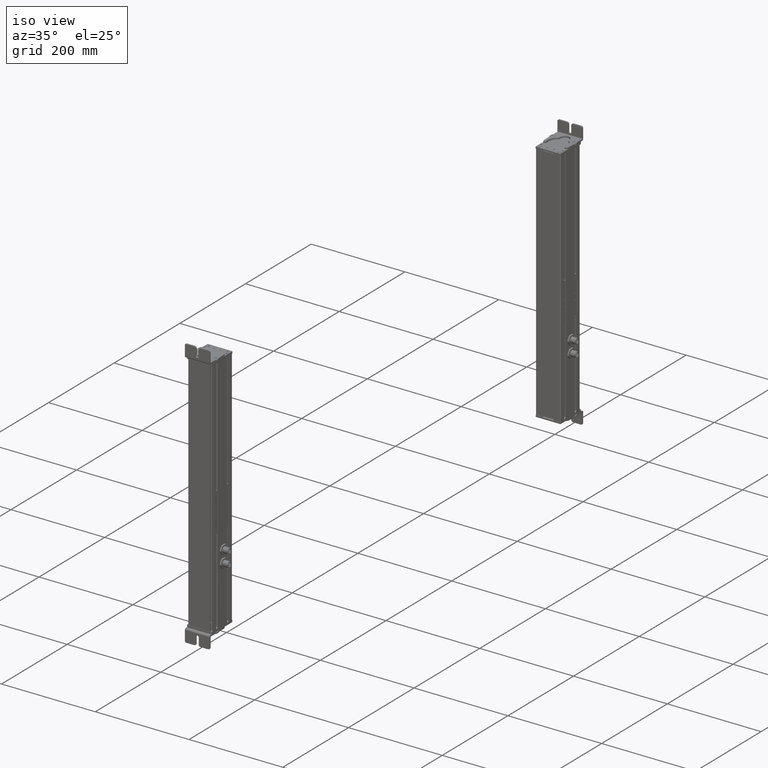
[diagram: clean part render]
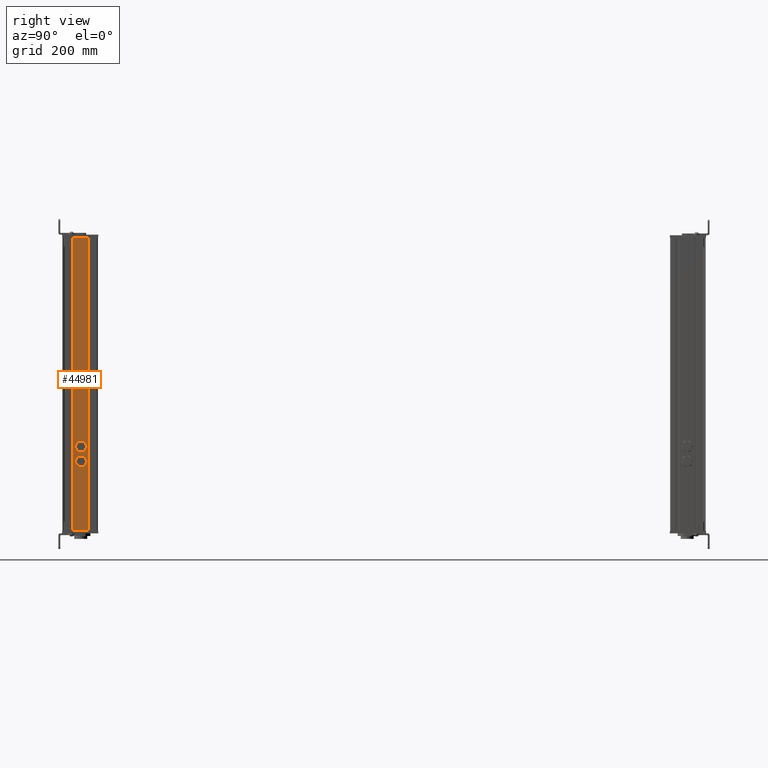
[diagram: tour spotlight — one face highlighted and labeled with its STEP entity id]
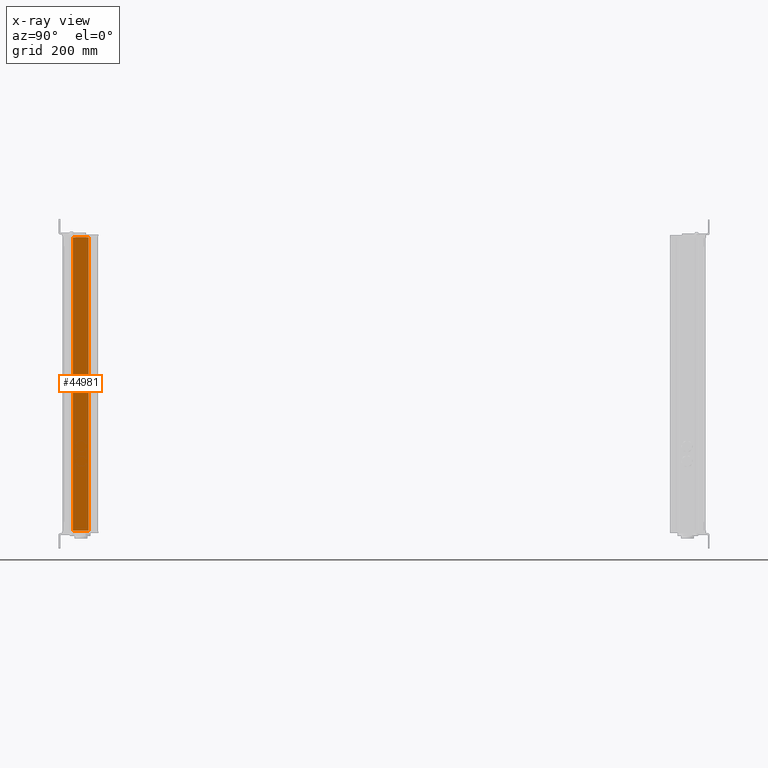
[diagram: x-ray of the same camera — body ghosted, this tour face saturated]
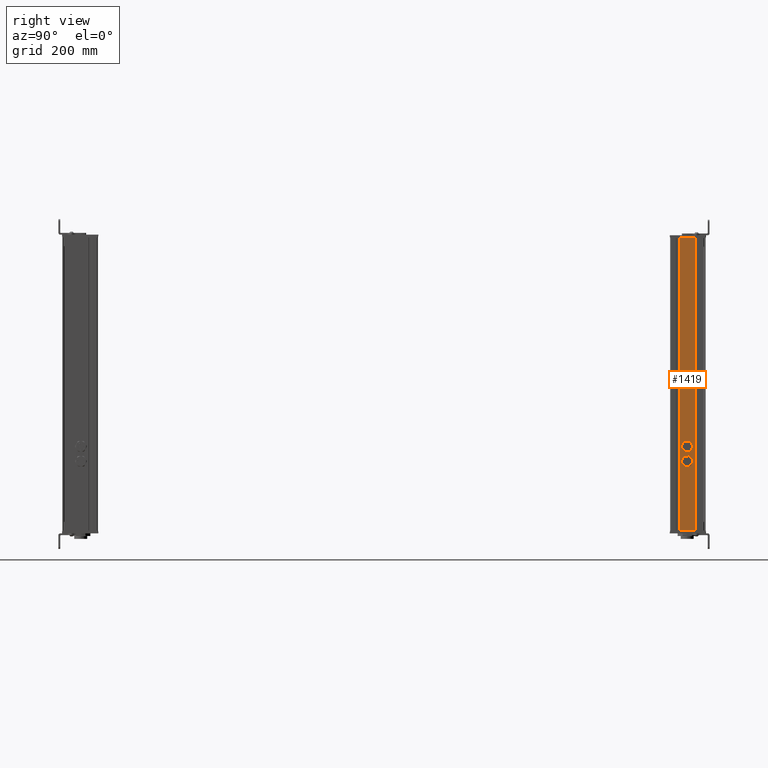
[diagram: tour spotlight — one face highlighted and labeled with its STEP entity id]
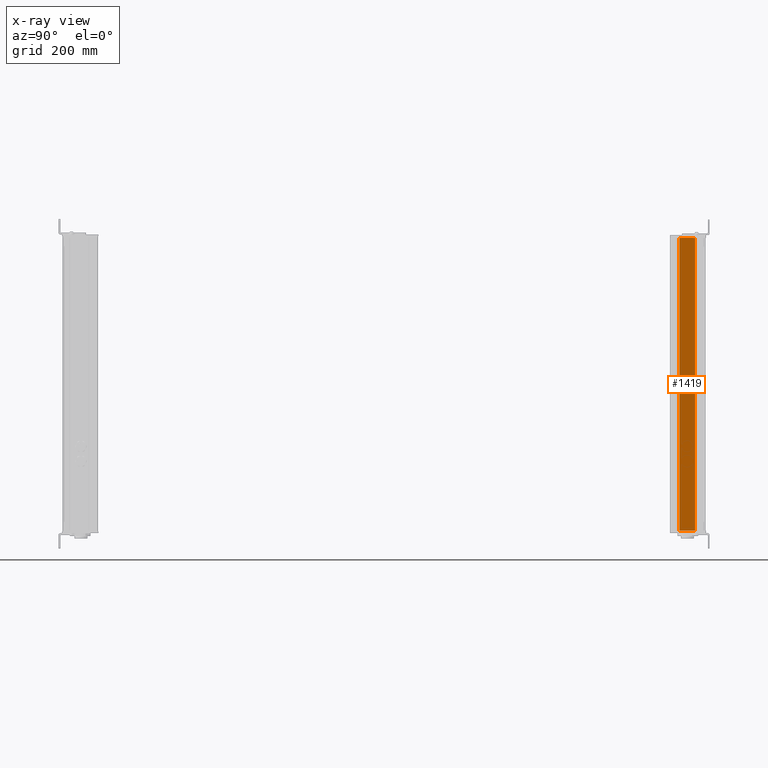
[diagram: x-ray of the same camera — body ghosted, this tour face saturated]
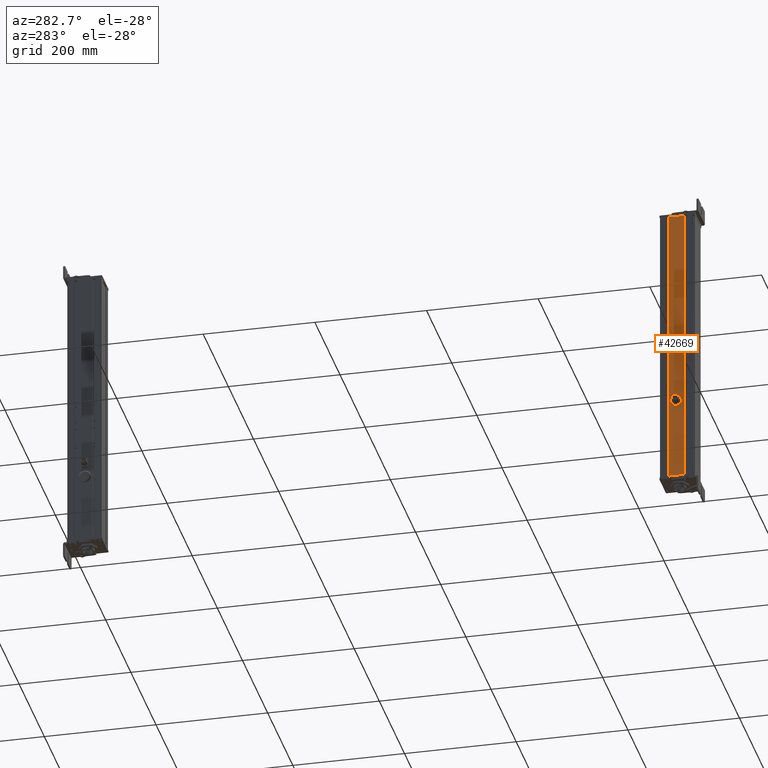
[diagram: tour spotlight — one face highlighted and labeled with its STEP entity id]
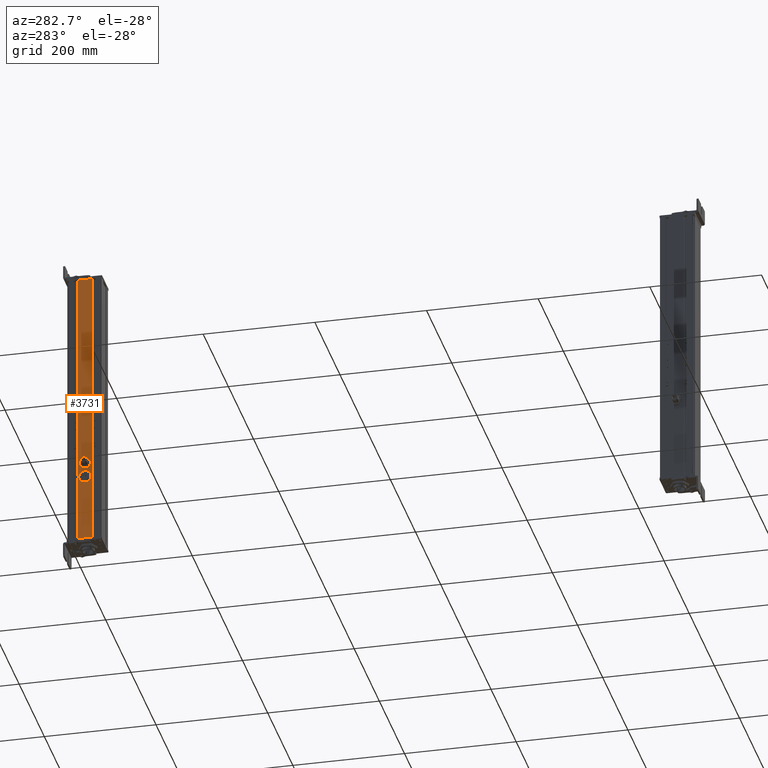
[diagram: tour spotlight — one face highlighted and labeled with its STEP entity id]
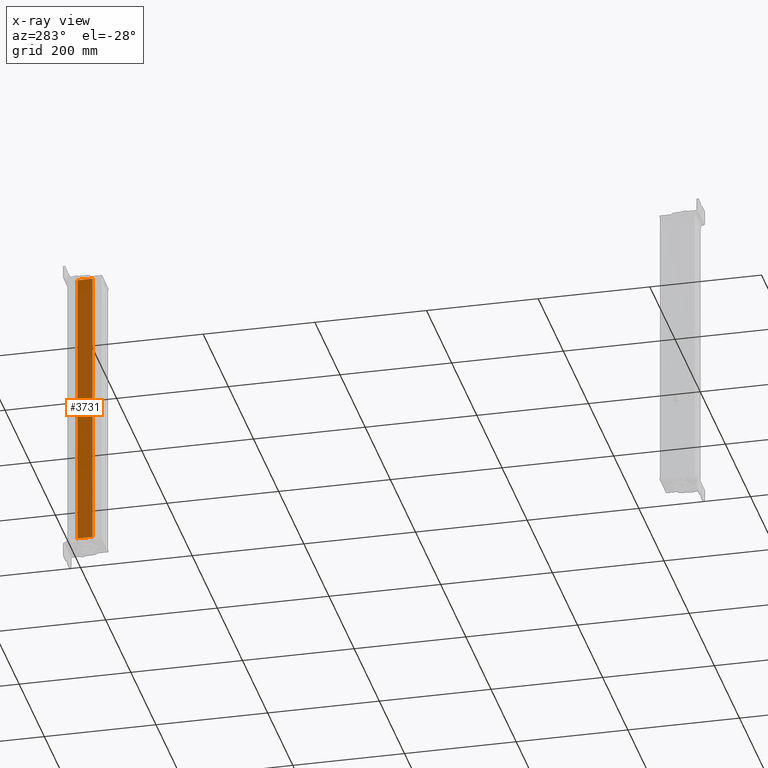
[diagram: x-ray of the same camera — body ghosted, this tour face saturated]
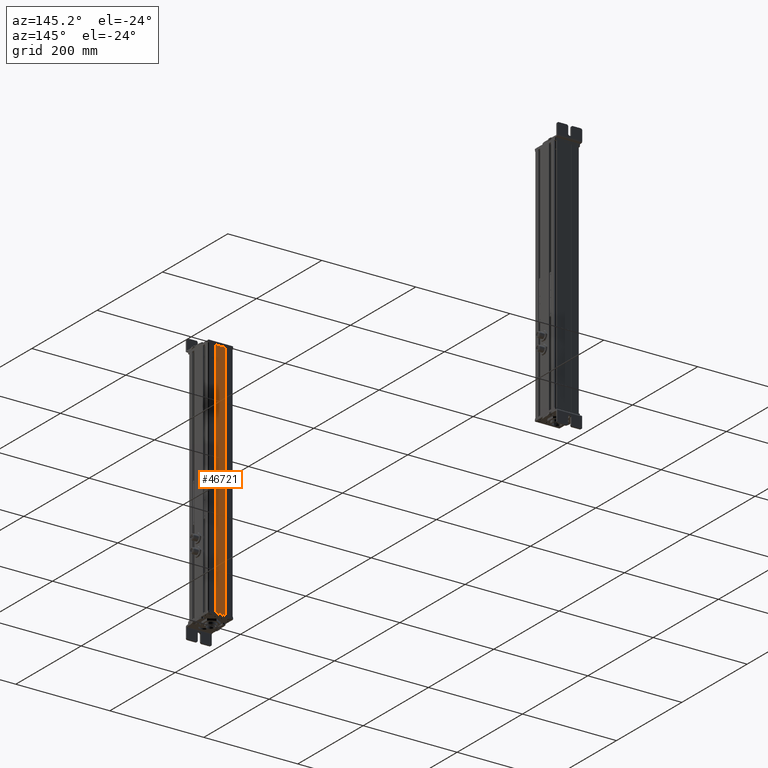
[diagram: tour spotlight — one face highlighted and labeled with its STEP entity id]
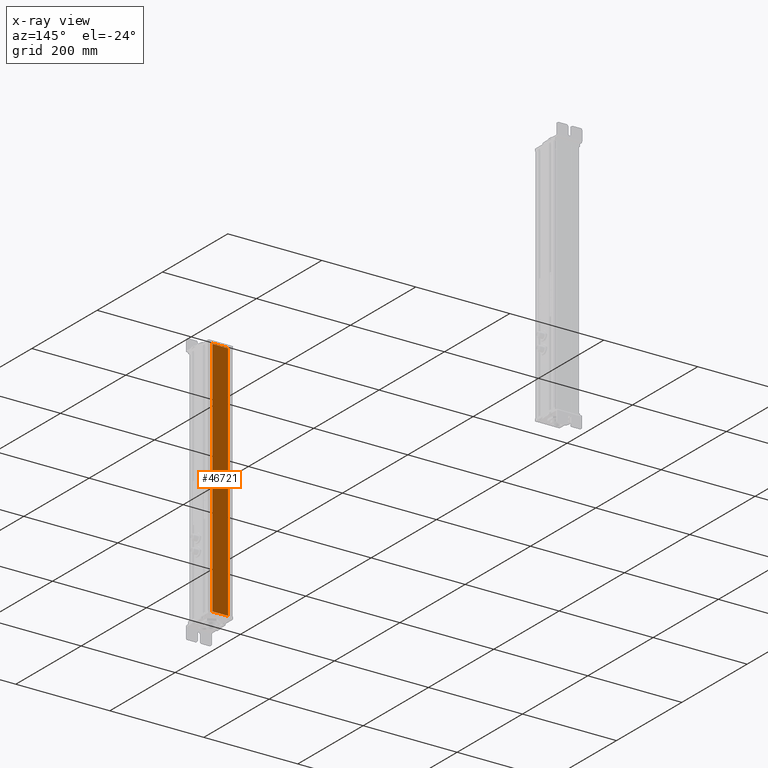
[diagram: x-ray of the same camera — body ghosted, this tour face saturated]
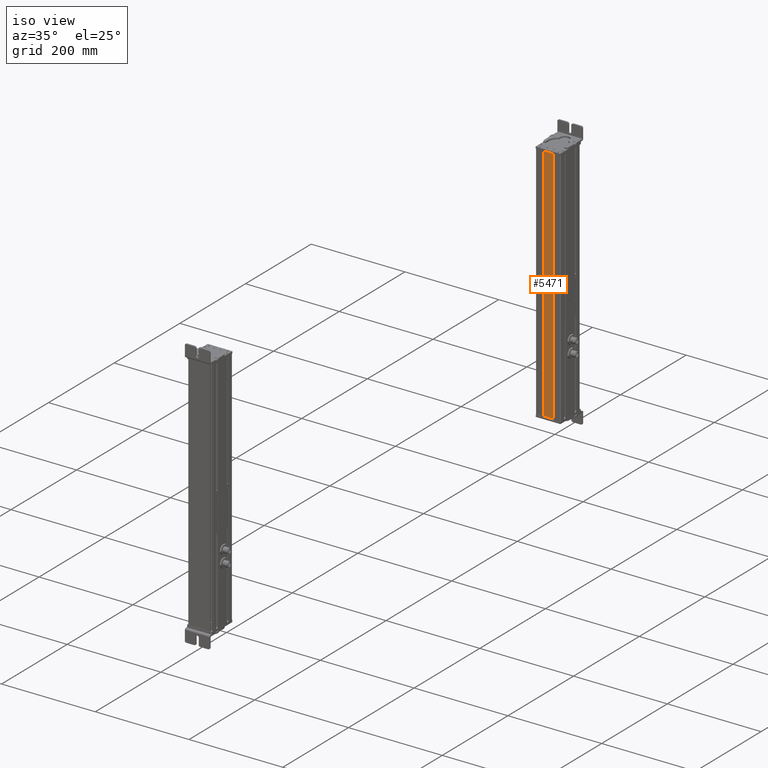
[diagram: tour spotlight — one face highlighted and labeled with its STEP entity id]
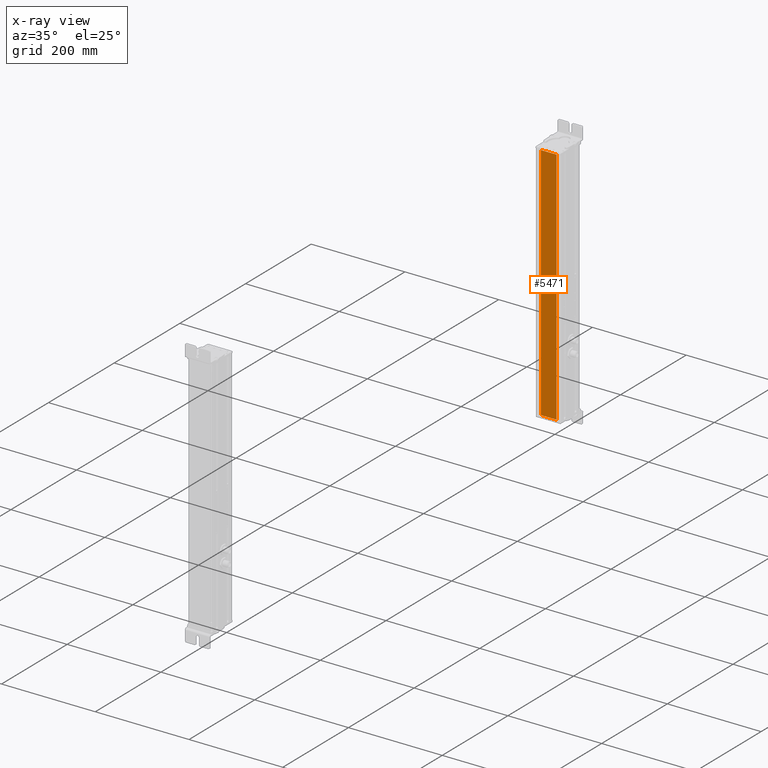
[diagram: x-ray of the same camera — body ghosted, this tour face saturated]
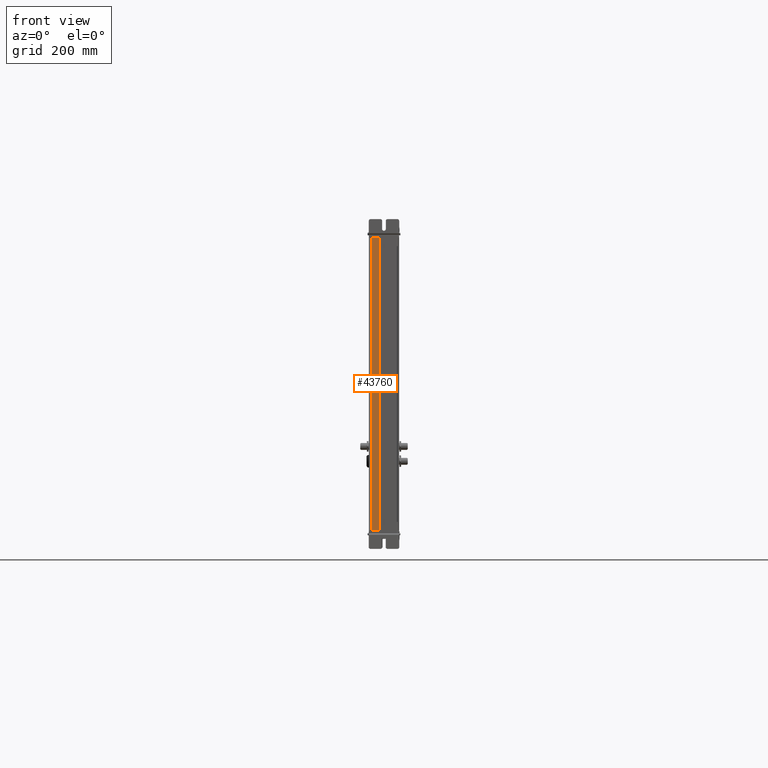
[diagram: tour spotlight — one face highlighted and labeled with its STEP entity id]
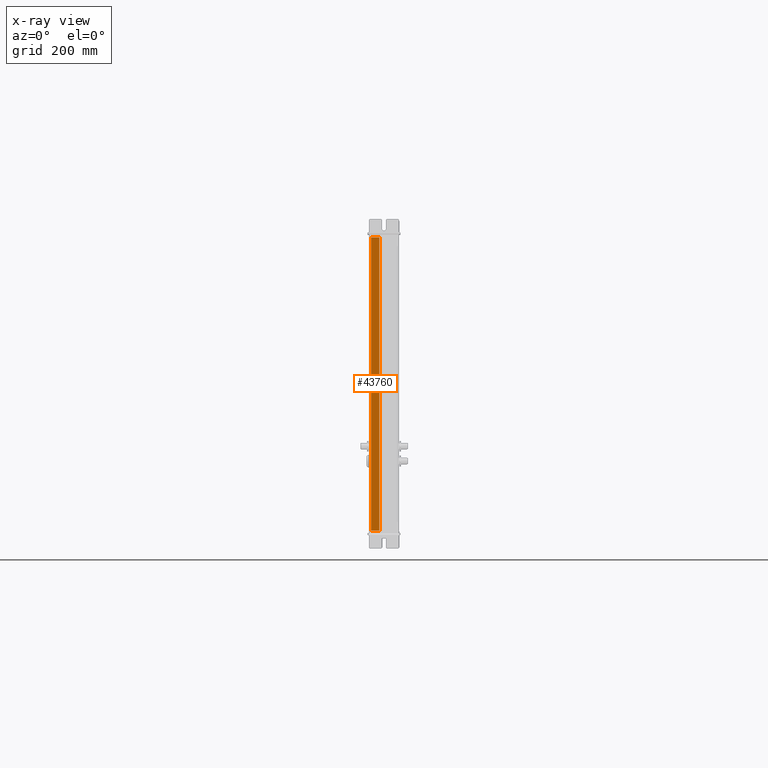
[diagram: x-ray of the same camera — body ghosted, this tour face saturated]
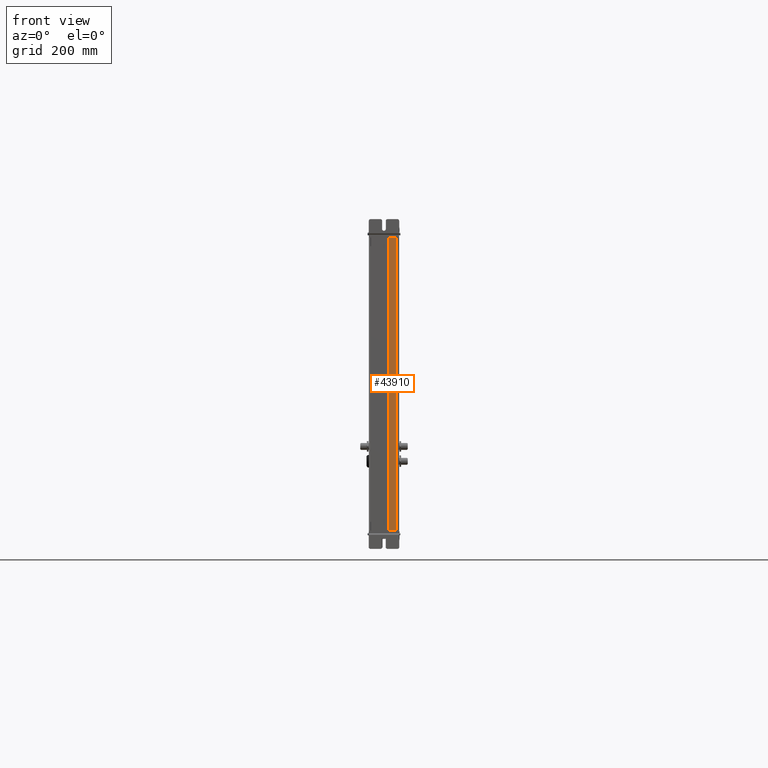
[diagram: tour spotlight — one face highlighted and labeled with its STEP entity id]
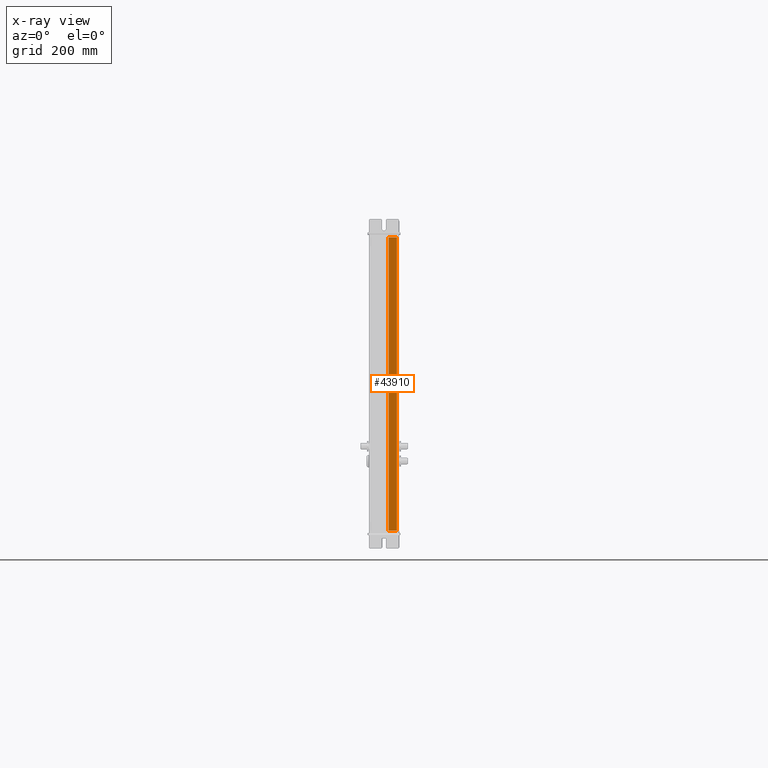
[diagram: x-ray of the same camera — body ghosted, this tour face saturated]
A machine part: a face-by-face anatomy tour. The part has 2095 B-rep faces; the first image is the clean iso view, then the 8 largest visible faces are spotlighted one at a time (largest first), each with its STEP entity span.

Face 1 — right view, entity #44981. An x-ray twin of the same camera follows (body ghosted, this face saturated) — the face is partly hidden behind the body. In plain terms, the highlighted planar face has unit normal (1, 0, 0).
Definition (entity closure, byte-faithful):
#44242=CARTESIAN_POINT('Axis2P3D Location',(666.195883662,171.710394004,0.)) ;
#44934=CARTESIAN_POINT('Vertex',(666.195883661,138.767790275,0.)) ;
#44937=CARTESIAN_POINT('Line Origine',(666.195883661,138.767790275,256.)) ;
#44941=CARTESIAN_POINT('Vertex',(666.195883661,138.767790275,512.)) ;
#44956=CARTESIAN_POINT('Line Origine',(666.195883662,152.38909214,0.)) ;
#44960=CARTESIAN_POINT('Vertex',(666.195883662,166.010394005,0.)) ;
#44963=CARTESIAN_POINT('Line Origine',(666.195883662,166.010394005,256.)) ;
#44967=CARTESIAN_POINT('Vertex',(666.195883662,166.010394005,512.)) ;
#44970=CARTESIAN_POINT('Line Origine',(666.195883662,152.38909214,512.)) ;
#44243=DIRECTION('Axis2P3D Direction',(1.,0.,0.)) ;
#44244=DIRECTION('Axis2P3D XDirection',(0.,1.,0.)) ;
#44938=DIRECTION('Vector Direction',(0.,0.,1.)) ;
#44957=DIRECTION('Vector Direction',(0.,1.,0.)) ;
#44964=DIRECTION('Vector Direction',(0.,0.,1.)) ;
#44971=DIRECTION('Vector Direction',(0.,1.,0.)) ;
#44245=AXIS2_PLACEMENT_3D('Plane Axis2P3D',#44242,#44243,#44244) ;
#44976=ORIENTED_EDGE('',*,*,#44943,.F.) ;
#44977=ORIENTED_EDGE('',*,*,#44962,.T.) ;
#44978=ORIENTED_EDGE('',*,*,#44969,.T.) ;
#44979=ORIENTED_EDGE('',*,*,#44974,.F.) ;
#44939=VECTOR('Line Direction',#44938,1.) ;
#44958=VECTOR('Line Direction',#44957,1.) ;
#44965=VECTOR('Line Direction',#44964,1.) ;
#44972=VECTOR('Line Direction',#44971,1.) ;
#44981=ADVANCED_FACE('Body.2',(#44980),#44246,.T.) ;
#44943=EDGE_CURVE('',#44935,#44942,#44940,.T.) ;
#44962=EDGE_CURVE('',#44935,#44961,#44959,.T.) ;
#44969=EDGE_CURVE('',#44961,#44968,#44966,.T.) ;
#44974=EDGE_CURVE('',#44942,#44968,#44973,.T.) ;
#44975=EDGE_LOOP('',(#44976,#44977,#44978,#44979)) ;
#44980=FACE_OUTER_BOUND('',#44975,.T.) ;
#44940=LINE('Line',#44937,#44939) ;
#44959=LINE('Line',#44956,#44958) ;
#44966=LINE('Line',#44963,#44965) ;
#44973=LINE('Line',#44970,#44972) ;
#44246=PLANE('Plane',#44245) ;
#44935=VERTEX_POINT('',#44934) ;
#44942=VERTEX_POINT('',#44941) ;
#44961=VERTEX_POINT('',#44960) ;
#44968=VERTEX_POINT('',#44967) ;

Face 2 — right view, entity #1419. An x-ray twin of the same camera follows (body ghosted, this face saturated) — the face is partly hidden behind the body. In plain terms, the highlighted planar face has unit normal (1, 0, 0).
Definition (entity closure, byte-faithful):
#660=CARTESIAN_POINT('Axis2P3D Location',(613.195548937,133.067790275,0.)) ;
#1372=CARTESIAN_POINT('Vertex',(613.195548938,166.010394004,0.)) ;
#1375=CARTESIAN_POINT('Line Origine',(613.195548938,166.010394004,255.5)) ;
#1379=CARTESIAN_POINT('Vertex',(613.195548938,166.010394004,511.)) ;
#1394=CARTESIAN_POINT('Line Origine',(613.195548937,152.38909214,0.)) ;
#1398=CARTESIAN_POINT('Vertex',(613.195548937,138.767790274,0.)) ;
#1401=CARTESIAN_POINT('Line Origine',(613.195548937,138.767790274,255.5)) ;
#1405=CARTESIAN_POINT('Vertex',(613.195548937,138.767790274,511.)) ;
#1408=CARTESIAN_POINT('Line Origine',(613.195548937,152.38909214,511.)) ;
#661=DIRECTION('Axis2P3D Direction',(-1.,0.,0.)) ;
#662=DIRECTION('Axis2P3D XDirection',(0.,-1.,0.)) ;
#1376=DIRECTION('Vector Direction',(0.,0.,1.)) ;
#1395=DIRECTION('Vector Direction',(0.,-1.,0.)) ;
#1402=DIRECTION('Vector Direction',(0.,0.,1.)) ;
#1409=DIRECTION('Vector Direction',(0.,-1.,0.)) ;
#663=AXIS2_PLACEMENT_3D('Plane Axis2P3D',#660,#661,#662) ;
#1414=ORIENTED_EDGE('',*,*,#1381,.F.) ;
#1415=ORIENTED_EDGE('',*,*,#1400,.T.) ;
#1416=ORIENTED_EDGE('',*,*,#1407,.T.) ;
#1417=ORIENTED_EDGE('',*,*,#1412,.F.) ;
#1377=VECTOR('Line Direction',#1376,1.) ;
#1396=VECTOR('Line Direction',#1395,1.) ;
#1403=VECTOR('Line Direction',#1402,1.) ;
#1410=VECTOR('Line Direction',#1409,1.) ;
#1419=ADVANCED_FACE('Body.2',(#1418),#664,.T.) ;
#1381=EDGE_CURVE('',#1373,#1380,#1378,.T.) ;
#1400=EDGE_CURVE('',#1373,#1399,#1397,.T.) ;
#1407=EDGE_CURVE('',#1399,#1406,#1404,.T.) ;
#1412=EDGE_CURVE('',#1380,#1406,#1411,.T.) ;
#1413=EDGE_LOOP('',(#1414,#1415,#1416,#1417)) ;
#1418=FACE_OUTER_BOUND('',#1413,.T.) ;
#1378=LINE('Line',#1375,#1377) ;
#1397=LINE('Line',#1394,#1396) ;
#1404=LINE('Line',#1401,#1403) ;
#1411=LINE('Line',#1408,#1410) ;
#664=PLANE('Plane',#663) ;
#1373=VERTEX_POINT('',#1372) ;
#1380=VERTEX_POINT('',#1379) ;
#1399=VERTEX_POINT('',#1398) ;
#1406=VERTEX_POINT('',#1405) ;

Face 3 — auxiliary view, entity #42669. In plain terms, the highlighted planar face has unit normal (-1, 0, 0).
Definition (entity closure, byte-faithful):
#41910=CARTESIAN_POINT('Axis2P3D Location',(613.195548937,133.067790275,0.)) ;
#42622=CARTESIAN_POINT('Vertex',(613.195548938,166.010394004,0.)) ;
#42625=CARTESIAN_POINT('Line Origine',(613.195548938,166.010394004,256.)) ;
#42629=CARTESIAN_POINT('Vertex',(613.195548938,166.010394004,512.)) ;
#42644=CARTESIAN_POINT('Line Origine',(613.195548937,152.38909214,0.)) ;
#42648=CARTESIAN_POINT('Vertex',(613.195548937,138.767790274,0.)) ;
#42651=CARTESIAN_POINT('Line Origine',(613.195548937,138.767790274,256.)) ;
#42655=CARTESIAN_POINT('Vertex',(613.195548937,138.767790274,512.)) ;
#42658=CARTESIAN_POINT('Line Origine',(613.195548937,152.38909214,512.)) ;
#41911=DIRECTION('Axis2P3D Direction',(-1.,0.,0.)) ;
#41912=DIRECTION('Axis2P3D XDirection',(0.,-1.,0.)) ;
#42626=DIRECTION('Vector Direction',(0.,0.,1.)) ;
#42645=DIRECTION('Vector Direction',(0.,-1.,0.)) ;
#42652=DIRECTION('Vector Direction',(0.,0.,1.)) ;
#42659=DIRECTION('Vector Direction',(0.,-1.,0.)) ;
#41913=AXIS2_PLACEMENT_3D('Plane Axis2P3D',#41910,#41911,#41912) ;
#42664=ORIENTED_EDGE('',*,*,#42631,.F.) ;
#42665=ORIENTED_EDGE('',*,*,#42650,.T.) ;
#42666=ORIENTED_EDGE('',*,*,#42657,.T.) ;
#42667=ORIENTED_EDGE('',*,*,#42662,.F.) ;
#42627=VECTOR('Line Direction',#42626,1.) ;
#42646=VECTOR('Line Direction',#42645,1.) ;
#42653=VECTOR('Line Direction',#42652,1.) ;
#42660=VECTOR('Line Direction',#42659,1.) ;
#42669=ADVANCED_FACE('Body.2',(#42668),#41914,.T.) ;
#42631=EDGE_CURVE('',#42623,#42630,#42628,.T.) ;
#42650=EDGE_CURVE('',#42623,#42649,#42647,.T.) ;
#42657=EDGE_CURVE('',#42649,#42656,#42654,.T.) ;
#42662=EDGE_CURVE('',#42630,#42656,#42661,.T.) ;
#42663=EDGE_LOOP('',(#42664,#42665,#42666,#42667)) ;
#42668=FACE_OUTER_BOUND('',#42663,.T.) ;
#42628=LINE('Line',#42625,#42627) ;
#42647=LINE('Line',#42644,#42646) ;
#42654=LINE('Line',#42651,#42653) ;
#42661=LINE('Line',#42658,#42660) ;
#41914=PLANE('Plane',#41913) ;
#42623=VERTEX_POINT('',#42622) ;
#42630=VERTEX_POINT('',#42629) ;
#42649=VERTEX_POINT('',#42648) ;
#42656=VERTEX_POINT('',#42655) ;

Face 4 — auxiliary view, entity #3731. An x-ray twin of the same camera follows (body ghosted, this face saturated) — the face is partly hidden behind the body. In plain terms, the highlighted planar face has unit normal (-1, 0, 0).
Definition (entity closure, byte-faithful):
#2992=CARTESIAN_POINT('Axis2P3D Location',(666.195883662,171.710394004,0.)) ;
#3684=CARTESIAN_POINT('Vertex',(666.195883661,138.767790275,0.)) ;
#3687=CARTESIAN_POINT('Line Origine',(666.195883661,138.767790275,255.5)) ;
#3691=CARTESIAN_POINT('Vertex',(666.195883661,138.767790275,511.)) ;
#3706=CARTESIAN_POINT('Line Origine',(666.195883662,152.38909214,0.)) ;
#3710=CARTESIAN_POINT('Vertex',(666.195883662,166.010394005,0.)) ;
#3713=CARTESIAN_POINT('Line Origine',(666.195883662,166.010394005,255.5)) ;
#3717=CARTESIAN_POINT('Vertex',(666.195883662,166.010394005,511.)) ;
#3720=CARTESIAN_POINT('Line Origine',(666.195883662,152.38909214,511.)) ;
#2993=DIRECTION('Axis2P3D Direction',(1.,0.,0.)) ;
#2994=DIRECTION('Axis2P3D XDirection',(0.,1.,0.)) ;
#3688=DIRECTION('Vector Direction',(0.,0.,1.)) ;
#3707=DIRECTION('Vector Direction',(0.,1.,0.)) ;
#3714=DIRECTION('Vector Direction',(0.,0.,1.)) ;
#3721=DIRECTION('Vector Direction',(0.,1.,0.)) ;
#2995=AXIS2_PLACEMENT_3D('Plane Axis2P3D',#2992,#2993,#2994) ;
#3726=ORIENTED_EDGE('',*,*,#3693,.F.) ;
#3727=ORIENTED_EDGE('',*,*,#3712,.T.) ;
#3728=ORIENTED_EDGE('',*,*,#3719,.T.) ;
#3729=ORIENTED_EDGE('',*,*,#3724,.F.) ;
#3689=VECTOR('Line Direction',#3688,1.) ;
#3708=VECTOR('Line Direction',#3707,1.) ;
#3715=VECTOR('Line Direction',#3714,1.) ;
#3722=VECTOR('Line Direction',#3721,1.) ;
#3731=ADVANCED_FACE('Body.2',(#3730),#2996,.T.) ;
#3693=EDGE_CURVE('',#3685,#3692,#3690,.T.) ;
#3712=EDGE_CURVE('',#3685,#3711,#3709,.T.) ;
#3719=EDGE_CURVE('',#3711,#3718,#3716,.T.) ;
#3724=EDGE_CURVE('',#3692,#3718,#3723,.T.) ;
#3725=EDGE_LOOP('',(#3726,#3727,#3728,#3729)) ;
#3730=FACE_OUTER_BOUND('',#3725,.T.) ;
#3690=LINE('Line',#3687,#3689) ;
#3709=LINE('Line',#3706,#3708) ;
#3716=LINE('Line',#3713,#3715) ;
#3723=LINE('Line',#3720,#3722) ;
#2996=PLANE('Plane',#2995) ;
#3685=VERTEX_POINT('',#3684) ;
#3692=VERTEX_POINT('',#3691) ;
#3711=VERTEX_POINT('',#3710) ;
#3718=VERTEX_POINT('',#3717) ;

Face 5 — auxiliary view, entity #46721. An x-ray twin of the same camera follows (body ghosted, this face saturated) — the face is partly hidden behind the body. In plain terms, the highlighted planar face has unit normal (0, 1, 0).
Definition (entity closure, byte-faithful):
#46638=CARTESIAN_POINT('Vertex',(622.718933105,180.560203323,0.)) ;
#46641=CARTESIAN_POINT('Line Origine',(639.443450928,180.560203323,0.)) ;
#46645=CARTESIAN_POINT('Vertex',(656.16796875,180.560203323,0.)) ;
#46678=CARTESIAN_POINT('Vertex',(622.718933105,180.560203323,512.)) ;
#46681=CARTESIAN_POINT('Line Origine',(622.718933105,180.560203323,256.)) ;
#46698=CARTESIAN_POINT('Axis2P3D Location',(656.16796875,180.560203323,0.)) ;
#46703=CARTESIAN_POINT('Line Origine',(656.16796875,180.560203323,256.)) ;
#46707=CARTESIAN_POINT('Vertex',(656.16796875,180.560203323,512.)) ;
#46710=CARTESIAN_POINT('Line Origine',(639.443450928,180.560203323,512.)) ;
#46642=DIRECTION('Vector Direction',(-1.,0.,0.)) ;
#46682=DIRECTION('Vector Direction',(0.,0.,1.)) ;
#46699=DIRECTION('Axis2P3D Direction',(-0.,1.,0.)) ;
#46700=DIRECTION('Axis2P3D XDirection',(-1.,-0.,0.)) ;
#46704=DIRECTION('Vector Direction',(0.,0.,1.)) ;
#46711=DIRECTION('Vector Direction',(-1.,0.,0.)) ;
#46701=AXIS2_PLACEMENT_3D('Plane Axis2P3D',#46698,#46699,#46700) ;
#46716=ORIENTED_EDGE('',*,*,#46709,.F.) ;
#46717=ORIENTED_EDGE('',*,*,#46647,.F.) ;
#46718=ORIENTED_EDGE('',*,*,#46685,.T.) ;
#46719=ORIENTED_EDGE('',*,*,#46714,.F.) ;
#46643=VECTOR('Line Direction',#46642,1.) ;
#46683=VECTOR('Line Direction',#46682,1.) ;
#46705=VECTOR('Line Direction',#46704,1.) ;
#46712=VECTOR('Line Direction',#46711,1.) ;
#46721=ADVANCED_FACE('Body.3',(#46720),#46702,.T.) ;
#46647=EDGE_CURVE('',#46639,#46646,#46644,.F.) ;
#46685=EDGE_CURVE('',#46639,#46679,#46684,.T.) ;
#46709=EDGE_CURVE('',#46646,#46708,#46706,.T.) ;
#46714=EDGE_CURVE('',#46708,#46679,#46713,.T.) ;
#46715=EDGE_LOOP('',(#46716,#46717,#46718,#46719)) ;
#46720=FACE_OUTER_BOUND('',#46715,.T.) ;
#46644=LINE('Line',#46641,#46643) ;
#46684=LINE('Line',#46681,#46683) ;
#46706=LINE('Line',#46703,#46705) ;
#46713=LINE('Line',#46710,#46712) ;
#46702=PLANE('Plane',#46701) ;
#46639=VERTEX_POINT('',#46638) ;
#46646=VERTEX_POINT('',#46645) ;
#46679=VERTEX_POINT('',#46678) ;
#46708=VERTEX_POINT('',#46707) ;

Face 6 — iso view, entity #5471. An x-ray twin of the same camera follows (body ghosted, this face saturated) — the face is partly hidden behind the body. In plain terms, the highlighted planar face has unit normal (0, -1, 0).
Definition (entity closure, byte-faithful):
#5388=CARTESIAN_POINT('Vertex',(622.718933105,180.560203323,0.)) ;
#5391=CARTESIAN_POINT('Line Origine',(639.443450928,180.560203323,0.)) ;
#5395=CARTESIAN_POINT('Vertex',(656.16796875,180.560203323,0.)) ;
#5428=CARTESIAN_POINT('Vertex',(622.718933105,180.560203323,511.)) ;
#5431=CARTESIAN_POINT('Line Origine',(622.718933105,180.560203323,255.5)) ;
#5448=CARTESIAN_POINT('Axis2P3D Location',(656.16796875,180.560203323,0.)) ;
#5453=CARTESIAN_POINT('Line Origine',(656.16796875,180.560203323,255.5)) ;
#5457=CARTESIAN_POINT('Vertex',(656.16796875,180.560203323,511.)) ;
#5460=CARTESIAN_POINT('Line Origine',(639.443450928,180.560203323,511.)) ;
#5392=DIRECTION('Vector Direction',(-1.,0.,0.)) ;
#5432=DIRECTION('Vector Direction',(0.,0.,1.)) ;
#5449=DIRECTION('Axis2P3D Direction',(-0.,1.,0.)) ;
#5450=DIRECTION('Axis2P3D XDirection',(-1.,-0.,0.)) ;
#5454=DIRECTION('Vector Direction',(0.,0.,1.)) ;
#5461=DIRECTION('Vector Direction',(-1.,0.,0.)) ;
#5451=AXIS2_PLACEMENT_3D('Plane Axis2P3D',#5448,#5449,#5450) ;
#5466=ORIENTED_EDGE('',*,*,#5459,.F.) ;
#5467=ORIENTED_EDGE('',*,*,#5397,.F.) ;
#5468=ORIENTED_EDGE('',*,*,#5435,.T.) ;
#5469=ORIENTED_EDGE('',*,*,#5464,.F.) ;
#5393=VECTOR('Line Direction',#5392,1.) ;
#5433=VECTOR('Line Direction',#5432,1.) ;
#5455=VECTOR('Line Direction',#5454,1.) ;
#5462=VECTOR('Line Direction',#5461,1.) ;
#5471=ADVANCED_FACE('Body.3',(#5470),#5452,.T.) ;
#5397=EDGE_CURVE('',#5389,#5396,#5394,.F.) ;
#5435=EDGE_CURVE('',#5389,#5429,#5434,.T.) ;
#5459=EDGE_CURVE('',#5396,#5458,#5456,.T.) ;
#5464=EDGE_CURVE('',#5458,#5429,#5463,.T.) ;
#5465=EDGE_LOOP('',(#5466,#5467,#5468,#5469)) ;
#5470=FACE_OUTER_BOUND('',#5465,.T.) ;
#5394=LINE('Line',#5391,#5393) ;
#5434=LINE('Line',#5431,#5433) ;
#5456=LINE('Line',#5453,#5455) ;
#5463=LINE('Line',#5460,#5462) ;
#5452=PLANE('Plane',#5451) ;
#5389=VERTEX_POINT('',#5388) ;
#5396=VERTEX_POINT('',#5395) ;
#5429=VERTEX_POINT('',#5428) ;
#5458=VERTEX_POINT('',#5457) ;

Face 7 — front view, entity #43760. An x-ray twin of the same camera follows (body ghosted, this face saturated) — the face is partly hidden behind the body. In plain terms, the highlighted planar face has unit normal (0, -1, 0).
Definition (entity closure, byte-faithful):
#43708=CARTESIAN_POINT('Vertex',(617.246770587,120.060780121,0.)) ;
#43711=CARTESIAN_POINT('Line Origine',(617.246770587,120.060780121,256.)) ;
#43715=CARTESIAN_POINT('Vertex',(617.246770587,120.060780121,512.)) ;
#43730=CARTESIAN_POINT('Axis2P3D Location',(647.67209889,120.060780121,0.)) ;
#43735=CARTESIAN_POINT('Line Origine',(624.483052148,120.060780121,0.)) ;
#43739=CARTESIAN_POINT('Vertex',(631.719333708,120.060780121,0.)) ;
#43742=CARTESIAN_POINT('Line Origine',(631.719333708,120.060780121,256.)) ;
#43746=CARTESIAN_POINT('Vertex',(631.719333708,120.060780121,512.)) ;
#43749=CARTESIAN_POINT('Line Origine',(624.483052148,120.060780121,512.)) ;
#43712=DIRECTION('Vector Direction',(0.,0.,1.)) ;
#43731=DIRECTION('Axis2P3D Direction',(0.,-1.,0.)) ;
#43732=DIRECTION('Axis2P3D XDirection',(1.,0.,0.)) ;
#43736=DIRECTION('Vector Direction',(1.,0.,0.)) ;
#43743=DIRECTION('Vector Direction',(0.,0.,1.)) ;
#43750=DIRECTION('Vector Direction',(1.,0.,0.)) ;
#43733=AXIS2_PLACEMENT_3D('Plane Axis2P3D',#43730,#43731,#43732) ;
#43755=ORIENTED_EDGE('',*,*,#43717,.F.) ;
#43756=ORIENTED_EDGE('',*,*,#43741,.T.) ;
#43757=ORIENTED_EDGE('',*,*,#43748,.T.) ;
#43758=ORIENTED_EDGE('',*,*,#43753,.F.) ;
#43713=VECTOR('Line Direction',#43712,1.) ;
#43737=VECTOR('Line Direction',#43736,1.) ;
#43744=VECTOR('Line Direction',#43743,1.) ;
#43751=VECTOR('Line Direction',#43750,1.) ;
#43760=ADVANCED_FACE('Body.2',(#43759),#43734,.T.) ;
#43717=EDGE_CURVE('',#43709,#43716,#43714,.T.) ;
#43741=EDGE_CURVE('',#43709,#43740,#43738,.T.) ;
#43748=EDGE_CURVE('',#43740,#43747,#43745,.T.) ;
#43753=EDGE_CURVE('',#43716,#43747,#43752,.T.) ;
#43754=EDGE_LOOP('',(#43755,#43756,#43757,#43758)) ;
#43759=FACE_OUTER_BOUND('',#43754,.T.) ;
#43714=LINE('Line',#43711,#43713) ;
#43738=LINE('Line',#43735,#43737) ;
#43745=LINE('Line',#43742,#43744) ;
#43752=LINE('Line',#43749,#43751) ;
#43734=PLANE('Plane',#43733) ;
#43709=VERTEX_POINT('',#43708) ;
#43716=VERTEX_POINT('',#43715) ;
#43740=VERTEX_POINT('',#43739) ;
#43747=VERTEX_POINT('',#43746) ;

Face 8 — front view, entity #43910. An x-ray twin of the same camera follows (body ghosted, this face saturated) — the face is partly hidden behind the body. In plain terms, the highlighted planar face has unit normal (0, -1, 0).
Definition (entity closure, byte-faithful):
#43730=CARTESIAN_POINT('Axis2P3D Location',(647.67209889,120.060780121,0.)) ;
#43863=CARTESIAN_POINT('Vertex',(647.67209889,120.060780121,512.)) ;
#43870=CARTESIAN_POINT('Vertex',(647.67209889,120.060780121,0.)) ;
#43873=CARTESIAN_POINT('Line Origine',(647.67209889,120.060780121,256.)) ;
#43885=CARTESIAN_POINT('Line Origine',(654.908380451,120.060780121,0.)) ;
#43889=CARTESIAN_POINT('Vertex',(662.144662012,120.060780121,0.)) ;
#43892=CARTESIAN_POINT('Line Origine',(662.144662012,120.060780121,256.)) ;
#43896=CARTESIAN_POINT('Vertex',(662.144662012,120.060780121,512.)) ;
#43899=CARTESIAN_POINT('Line Origine',(654.908380451,120.060780121,512.)) ;
#43731=DIRECTION('Axis2P3D Direction',(0.,-1.,0.)) ;
#43732=DIRECTION('Axis2P3D XDirection',(1.,0.,0.)) ;
#43874=DIRECTION('Vector Direction',(0.,0.,1.)) ;
#43886=DIRECTION('Vector Direction',(1.,0.,0.)) ;
#43893=DIRECTION('Vector Direction',(0.,0.,1.)) ;
#43900=DIRECTION('Vector Direction',(1.,0.,0.)) ;
#43733=AXIS2_PLACEMENT_3D('Plane Axis2P3D',#43730,#43731,#43732) ;
#43905=ORIENTED_EDGE('',*,*,#43877,.F.) ;
#43906=ORIENTED_EDGE('',*,*,#43891,.T.) ;
#43907=ORIENTED_EDGE('',*,*,#43898,.T.) ;
#43908=ORIENTED_EDGE('',*,*,#43903,.F.) ;
#43875=VECTOR('Line Direction',#43874,1.) ;
#43887=VECTOR('Line Direction',#43886,1.) ;
#43894=VECTOR('Line Direction',#43893,1.) ;
#43901=VECTOR('Line Direction',#43900,1.) ;
#43910=ADVANCED_FACE('Body.2',(#43909),#43734,.T.) ;
#43877=EDGE_CURVE('',#43871,#43864,#43876,.T.) ;
#43891=EDGE_CURVE('',#43871,#43890,#43888,.T.) ;
#43898=EDGE_CURVE('',#43890,#43897,#43895,.T.) ;
#43903=EDGE_CURVE('',#43864,#43897,#43902,.T.) ;
#43904=EDGE_LOOP('',(#43905,#43906,#43907,#43908)) ;
#43909=FACE_OUTER_BOUND('',#43904,.T.) ;
#43876=LINE('Line',#43873,#43875) ;
#43888=LINE('Line',#43885,#43887) ;
#43895=LINE('Line',#43892,#43894) ;
#43902=LINE('Line',#43899,#43901) ;
#43734=PLANE('Plane',#43733) ;
#43864=VERTEX_POINT('',#43863) ;
#43871=VERTEX_POINT('',#43870) ;
#43890=VERTEX_POINT('',#43889) ;
#43897=VERTEX_POINT('',#43896) ;